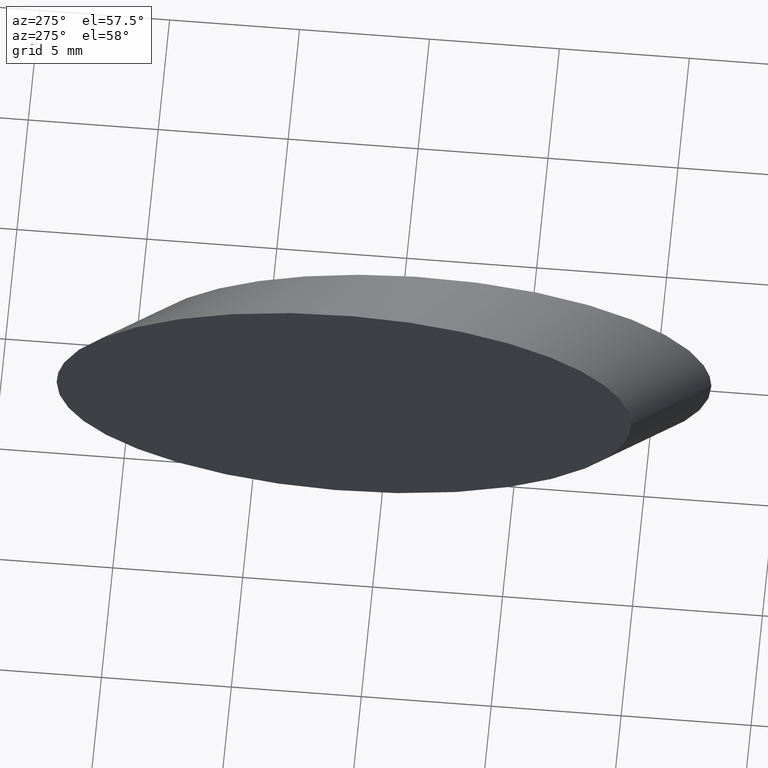
[diagram: clean part render]
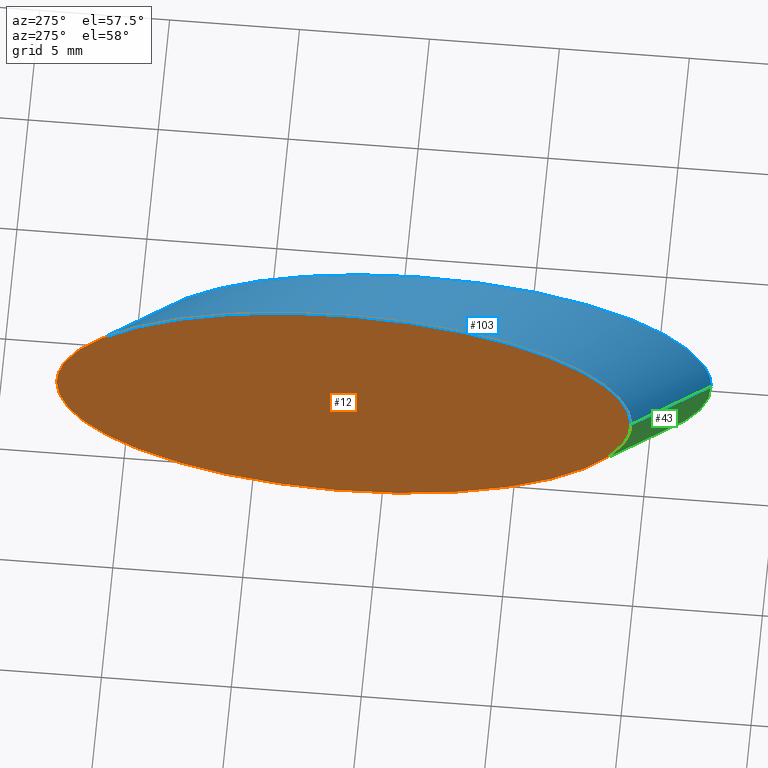
[diagram: same view with three faces highlighted in distinct colors, each labeled with its STEP entity id]
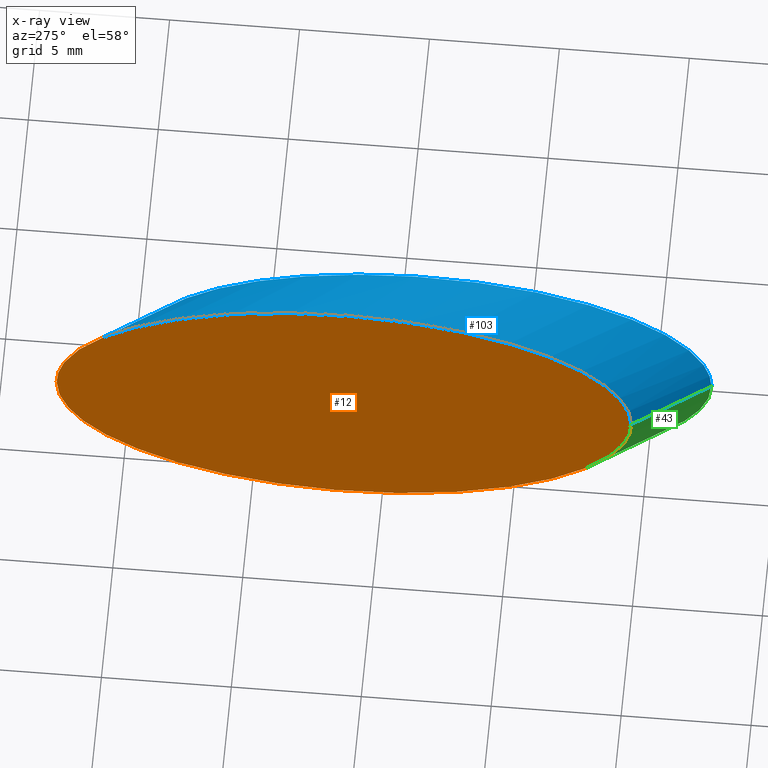
[diagram: x-ray of the same camera — body ghosted, the three highlighted faces saturated]
A machine part, auxiliary view with three faces highlighted in distinct colors.
The next image is the same camera in x-ray (body ghosted, the three faces saturated) — at least one of them is partly hidden behind the body in this view.
Their STEP definitions:

[orange] entity #12 — the highlighted planar face has unit normal (-1, 0, -0).
#4 = CARTESIAN_POINT ( 'NONE',  ( -0.9999999999999991100, 12.51184537694692600, -6.250000000000000000 ) ) ;
#5 = ORIENTED_EDGE ( 'NONE', *, *, #69, .T. ) ;
#6 = CARTESIAN_POINT ( 'NONE',  ( -1.000000000000004400, -9.594561307427634100, 0.0000000000000000000 ) ) ;
#12 = ADVANCED_FACE ( 'NONE', ( #172 ), #92, .T. ) ;
#20 = CARTESIAN_POINT ( 'NONE',  ( -1.000000000000004400, 12.51184537694691900, 7.654042494670957600E-016 ) ) ;
#22 = CARTESIAN_POINT ( 'NONE',  ( -1.000000000000004400, 12.51184537694692300, -12.50000000000000000 ) ) ;
#29 = CARTESIAN_POINT ( 'NONE',  ( -1.000000000000004400, -9.594561307427637700, 12.50000000000000000 ) ) ;
#33 = AXIS2_PLACEMENT_3D ( 'NONE', #4, #65, #115 ) ;
#50 = CARTESIAN_POINT ( 'NONE',  ( -1.000000000000004400, -9.594561307427632400, -12.50000000000000000 ) ) ;
#65 = DIRECTION ( 'NONE',  ( -1.000000000000000000, 0.0000000000000000000, -0.0000000000000000000 ) ) ;
#69 = EDGE_CURVE ( 'NONE', #137, #74, #90, .T. ) ;
#74 = VERTEX_POINT ( 'NONE', #20 ) ;
#76 = EDGE_CURVE ( 'NONE', #74, #137, #122, .T. ) ;
#90 =( BOUNDED_CURVE ( )  B_SPLINE_CURVE ( 3, ( #169, #29, #143, #113 ),
 .UNSPECIFIED., .F., .F. ) 
 B_SPLINE_CURVE_WITH_KNOTS ( ( 4, 4 ),
 ( 3.141592653589793100, 6.283185307179586200 ),
 .UNSPECIFIED. ) 
 CURVE ( )  GEOMETRIC_REPRESENTATION_ITEM ( )  RATIONAL_B_SPLINE_CURVE ( ( 1.000000000000000000, 0.3333333333333333700, 0.3333333333333333700, 1.000000000000000000 ) ) 
 REPRESENTATION_ITEM ( '' )  );
#92 = PLANE ( 'NONE',  #33 ) ;
#113 = CARTESIAN_POINT ( 'NONE',  ( -1.000000000000004400, 12.51184537694691900, 7.654042494670957600E-016 ) ) ;
#115 = DIRECTION ( 'NONE',  ( -0.0000000000000000000, 0.0000000000000000000, 1.000000000000000000 ) ) ;
#122 =( BOUNDED_CURVE ( )  B_SPLINE_CURVE ( 3, ( #133, #22, #50, #168 ),
 .UNSPECIFIED., .F., .T. ) 
 B_SPLINE_CURVE_WITH_KNOTS ( ( 4, 4 ),
 ( 0.0000000000000000000, 3.141592653589793100 ),
 .UNSPECIFIED. ) 
 CURVE ( )  GEOMETRIC_REPRESENTATION_ITEM ( )  RATIONAL_B_SPLINE_CURVE ( ( 1.000000000000000000, 0.3333333333333333700, 0.3333333333333333700, 1.000000000000000000 ) ) 
 REPRESENTATION_ITEM ( '' )  );
#124 = EDGE_LOOP ( 'NONE', ( #5, #152 ) ) ;
#133 = CARTESIAN_POINT ( 'NONE',  ( -1.000000000000004400, 12.51184537694691900, 7.654042494670957600E-016 ) ) ;
#137 = VERTEX_POINT ( 'NONE', #6 ) ;
#143 = CARTESIAN_POINT ( 'NONE',  ( -1.000000000000004400, 12.51184537694692300, 12.50000000000000000 ) ) ;
#152 = ORIENTED_EDGE ( 'NONE', *, *, #76, .T. ) ;
#168 = CARTESIAN_POINT ( 'NONE',  ( -1.000000000000004400, -9.594561307427634100, 0.0000000000000000000 ) ) ;
#169 = CARTESIAN_POINT ( 'NONE',  ( -1.000000000000004400, -9.594561307427634100, 0.0000000000000000000 ) ) ;
#172 = FACE_OUTER_BOUND ( 'NONE', #124, .T. ) ;

[blue] entity #103 — the highlighted cylindrical surface (partial cylindrical patch) has radius 6.25 mm, axis along (-0.5654, 0.8248, -0).
#6 = CARTESIAN_POINT ( 'NONE',  ( -1.000000000000004400, -9.594561307427634100, 0.0000000000000000000 ) ) ;
#14 = ORIENTED_EDGE ( 'NONE', *, *, #41, .T. ) ;
#17 = VERTEX_POINT ( 'NONE', #72 ) ;
#18 = CARTESIAN_POINT ( 'NONE',  ( 1.000000000000007800, -12.51184537694693300, 0.0000000000000000000 ) ) ;
#20 = CARTESIAN_POINT ( 'NONE',  ( -1.000000000000004400, 12.51184537694691900, 7.654042494670957600E-016 ) ) ;
#29 = CARTESIAN_POINT ( 'NONE',  ( -1.000000000000004400, -9.594561307427637700, 12.50000000000000000 ) ) ;
#30 = CARTESIAN_POINT ( 'NONE',  ( 1.000000000000004400, 9.594561307427639500, 7.654042494670957600E-016 ) ) ;
#34 = FACE_OUTER_BOUND ( 'NONE', #85, .T. ) ;
#37 = CARTESIAN_POINT ( 'NONE',  ( 1.000000000000002400, 9.594561307427635900, 12.50000000000000000 ) ) ;
#41 = EDGE_CURVE ( 'NONE', #17, #74, #95, .T. ) ;
#44 = ORIENTED_EDGE ( 'NONE', *, *, #81, .F. ) ;
#54 = DIRECTION ( 'NONE',  ( -0.5654469393633004800, 0.8247846741814957000, -0.0000000000000000000 ) ) ;
#61 = VERTEX_POINT ( 'NONE', #18 ) ;
#64 = EDGE_CURVE ( 'NONE', #61, #137, #123, .T. ) ;
#69 = EDGE_CURVE ( 'NONE', #137, #74, #90, .T. ) ;
#72 = CARTESIAN_POINT ( 'NONE',  ( 1.000000000000004400, 9.594561307427639500, 7.654042494670957600E-016 ) ) ;
#74 = VERTEX_POINT ( 'NONE', #20 ) ;
#81 = EDGE_CURVE ( 'NONE', #17, #61, #107, .T. ) ;
#82 = CARTESIAN_POINT ( 'NONE',  ( 28.27234696816502400, -41.23923370907478200, 0.0000000000000000000 ) ) ;
#84 = DIRECTION ( 'NONE',  ( -0.8247846741814953700, -0.5654469393633009300, 0.0000000000000000000 ) ) ;
#85 = EDGE_LOOP ( 'NONE', ( #44, #14, #130, #173 ) ) ;
#90 =( BOUNDED_CURVE ( )  B_SPLINE_CURVE ( 3, ( #169, #29, #143, #113 ),
 .UNSPECIFIED., .F., .F. ) 
 B_SPLINE_CURVE_WITH_KNOTS ( ( 4, 4 ),
 ( 3.141592653589793100, 6.283185307179586200 ),
 .UNSPECIFIED. ) 
 CURVE ( )  GEOMETRIC_REPRESENTATION_ITEM ( )  RATIONAL_B_SPLINE_CURVE ( ( 1.000000000000000000, 0.3333333333333333700, 0.3333333333333333700, 1.000000000000000000 ) ) 
 REPRESENTATION_ITEM ( '' )  );
#94 = CARTESIAN_POINT ( 'NONE',  ( 23.11744275453067500, -44.77327708009541900, 0.0000000000000000000 ) ) ;
#95 = LINE ( 'NONE', #111, #170 ) ;
#98 = AXIS2_PLACEMENT_3D ( 'NONE', #82, #54, #84 ) ;
#103 = ADVANCED_FACE ( 'NONE', ( #34 ), #106, .T. ) ;
#106 = CYLINDRICAL_SURFACE ( 'NONE', #98, 6.250000000000001800 ) ;
#107 =( BOUNDED_CURVE ( )  B_SPLINE_CURVE ( 3, ( #30, #37, #158, #157 ),
 .UNSPECIFIED., .F., .T. ) 
 B_SPLINE_CURVE_WITH_KNOTS ( ( 4, 4 ),
 ( 1.224646799147353000E-016, 3.141592653589793100 ),
 .UNSPECIFIED. ) 
 CURVE ( )  GEOMETRIC_REPRESENTATION_ITEM ( )  RATIONAL_B_SPLINE_CURVE ( ( 1.000000000000000000, 0.3333333333333333700, 0.3333333333333333700, 1.000000000000000000 ) ) 
 REPRESENTATION_ITEM ( '' )  );
#109 = VECTOR ( 'NONE', #144, 1000.000000000000000 ) ;
#111 = CARTESIAN_POINT ( 'NONE',  ( 33.42725118179937000, -37.70519033805415200, 7.654042494670957600E-016 ) ) ;
#113 = CARTESIAN_POINT ( 'NONE',  ( -1.000000000000004400, 12.51184537694691900, 7.654042494670957600E-016 ) ) ;
#123 = LINE ( 'NONE', #94, #109 ) ;
#130 = ORIENTED_EDGE ( 'NONE', *, *, #69, .F. ) ;
#137 = VERTEX_POINT ( 'NONE', #6 ) ;
#143 = CARTESIAN_POINT ( 'NONE',  ( -1.000000000000004400, 12.51184537694692300, 12.50000000000000000 ) ) ;
#144 = DIRECTION ( 'NONE',  ( -0.5654469393633004800, 0.8247846741814957000, -0.0000000000000000000 ) ) ;
#157 = CARTESIAN_POINT ( 'NONE',  ( 1.000000000000007800, -12.51184537694693300, 0.0000000000000000000 ) ) ;
#158 = CARTESIAN_POINT ( 'NONE',  ( 1.000000000000006200, -12.51184537694692300, 12.50000000000000000 ) ) ;
#159 = DIRECTION ( 'NONE',  ( -0.5654469393633004800, 0.8247846741814957000, -0.0000000000000000000 ) ) ;
#169 = CARTESIAN_POINT ( 'NONE',  ( -1.000000000000004400, -9.594561307427634100, 0.0000000000000000000 ) ) ;
#170 = VECTOR ( 'NONE', #159, 1000.000000000000000 ) ;
#173 = ORIENTED_EDGE ( 'NONE', *, *, #64, .F. ) ;

[green] entity #43 — the highlighted cylindrical surface (partial cylindrical patch) has radius 6.25 mm, axis along (-0.5654, 0.8248, -0).
#6 = CARTESIAN_POINT ( 'NONE',  ( -1.000000000000004400, -9.594561307427634100, 0.0000000000000000000 ) ) ;
#7 = AXIS2_PLACEMENT_3D ( 'NONE', #52, #93, #16 ) ;
#16 = DIRECTION ( 'NONE',  ( -0.8247846741814953700, -0.5654469393633009300, 0.0000000000000000000 ) ) ;
#17 = VERTEX_POINT ( 'NONE', #72 ) ;
#18 = CARTESIAN_POINT ( 'NONE',  ( 1.000000000000007800, -12.51184537694693300, 0.0000000000000000000 ) ) ;
#20 = CARTESIAN_POINT ( 'NONE',  ( -1.000000000000004400, 12.51184537694691900, 7.654042494670957600E-016 ) ) ;
#22 = CARTESIAN_POINT ( 'NONE',  ( -1.000000000000004400, 12.51184537694692300, -12.50000000000000000 ) ) ;
#27 = ORIENTED_EDGE ( 'NONE', *, *, #64, .T. ) ;
#41 = EDGE_CURVE ( 'NONE', #17, #74, #95, .T. ) ;
#43 = ADVANCED_FACE ( 'NONE', ( #55 ), #48, .T. ) ;
#48 = CYLINDRICAL_SURFACE ( 'NONE', #7, 6.250000000000001800 ) ;
#50 = CARTESIAN_POINT ( 'NONE',  ( -1.000000000000004400, -9.594561307427632400, -12.50000000000000000 ) ) ;
#51 = ORIENTED_EDGE ( 'NONE', *, *, #126, .F. ) ;
#52 = CARTESIAN_POINT ( 'NONE',  ( 28.27234696816502400, -41.23923370907478200, 0.0000000000000000000 ) ) ;
#55 = FACE_OUTER_BOUND ( 'NONE', #175, .T. ) ;
#61 = VERTEX_POINT ( 'NONE', #18 ) ;
#64 = EDGE_CURVE ( 'NONE', #61, #137, #123, .T. ) ;
#68 = CARTESIAN_POINT ( 'NONE',  ( 1.000000000000006200, -12.51184537694692800, -12.50000000000000000 ) ) ;
#71 =( BOUNDED_CURVE ( )  B_SPLINE_CURVE ( 3, ( #155, #68, #145, #96 ),
 .UNSPECIFIED., .F., .F. ) 
 B_SPLINE_CURVE_WITH_KNOTS ( ( 4, 4 ),
 ( 3.141592653589793100, 6.283185307179586200 ),
 .UNSPECIFIED. ) 
 CURVE ( )  GEOMETRIC_REPRESENTATION_ITEM ( )  RATIONAL_B_SPLINE_CURVE ( ( 1.000000000000000000, 0.3333333333333333700, 0.3333333333333333700, 1.000000000000000000 ) ) 
 REPRESENTATION_ITEM ( '' )  );
#72 = CARTESIAN_POINT ( 'NONE',  ( 1.000000000000004400, 9.594561307427639500, 7.654042494670957600E-016 ) ) ;
#74 = VERTEX_POINT ( 'NONE', #20 ) ;
#76 = EDGE_CURVE ( 'NONE', #74, #137, #122, .T. ) ;
#93 = DIRECTION ( 'NONE',  ( -0.5654469393633004800, 0.8247846741814957000, -0.0000000000000000000 ) ) ;
#94 = CARTESIAN_POINT ( 'NONE',  ( 23.11744275453067500, -44.77327708009541900, 0.0000000000000000000 ) ) ;
#95 = LINE ( 'NONE', #111, #170 ) ;
#96 = CARTESIAN_POINT ( 'NONE',  ( 1.000000000000004400, 9.594561307427639500, 7.654042494670957600E-016 ) ) ;
#109 = VECTOR ( 'NONE', #144, 1000.000000000000000 ) ;
#111 = CARTESIAN_POINT ( 'NONE',  ( 33.42725118179937000, -37.70519033805415200, 7.654042494670957600E-016 ) ) ;
#122 =( BOUNDED_CURVE ( )  B_SPLINE_CURVE ( 3, ( #133, #22, #50, #168 ),
 .UNSPECIFIED., .F., .T. ) 
 B_SPLINE_CURVE_WITH_KNOTS ( ( 4, 4 ),
 ( 0.0000000000000000000, 3.141592653589793100 ),
 .UNSPECIFIED. ) 
 CURVE ( )  GEOMETRIC_REPRESENTATION_ITEM ( )  RATIONAL_B_SPLINE_CURVE ( ( 1.000000000000000000, 0.3333333333333333700, 0.3333333333333333700, 1.000000000000000000 ) ) 
 REPRESENTATION_ITEM ( '' )  );
#123 = LINE ( 'NONE', #94, #109 ) ;
#126 = EDGE_CURVE ( 'NONE', #61, #17, #71, .T. ) ;
#133 = CARTESIAN_POINT ( 'NONE',  ( -1.000000000000004400, 12.51184537694691900, 7.654042494670957600E-016 ) ) ;
#137 = VERTEX_POINT ( 'NONE', #6 ) ;
#139 = ORIENTED_EDGE ( 'NONE', *, *, #76, .F. ) ;
#144 = DIRECTION ( 'NONE',  ( -0.5654469393633004800, 0.8247846741814957000, -0.0000000000000000000 ) ) ;
#145 = CARTESIAN_POINT ( 'NONE',  ( 1.000000000000002400, 9.594561307427637700, -12.50000000000000000 ) ) ;
#148 = ORIENTED_EDGE ( 'NONE', *, *, #41, .F. ) ;
#155 = CARTESIAN_POINT ( 'NONE',  ( 1.000000000000007800, -12.51184537694693300, 0.0000000000000000000 ) ) ;
#159 = DIRECTION ( 'NONE',  ( -0.5654469393633004800, 0.8247846741814957000, -0.0000000000000000000 ) ) ;
#168 = CARTESIAN_POINT ( 'NONE',  ( -1.000000000000004400, -9.594561307427634100, 0.0000000000000000000 ) ) ;
#170 = VECTOR ( 'NONE', #159, 1000.000000000000000 ) ;
#175 = EDGE_LOOP ( 'NONE', ( #148, #51, #27, #139 ) ) ;